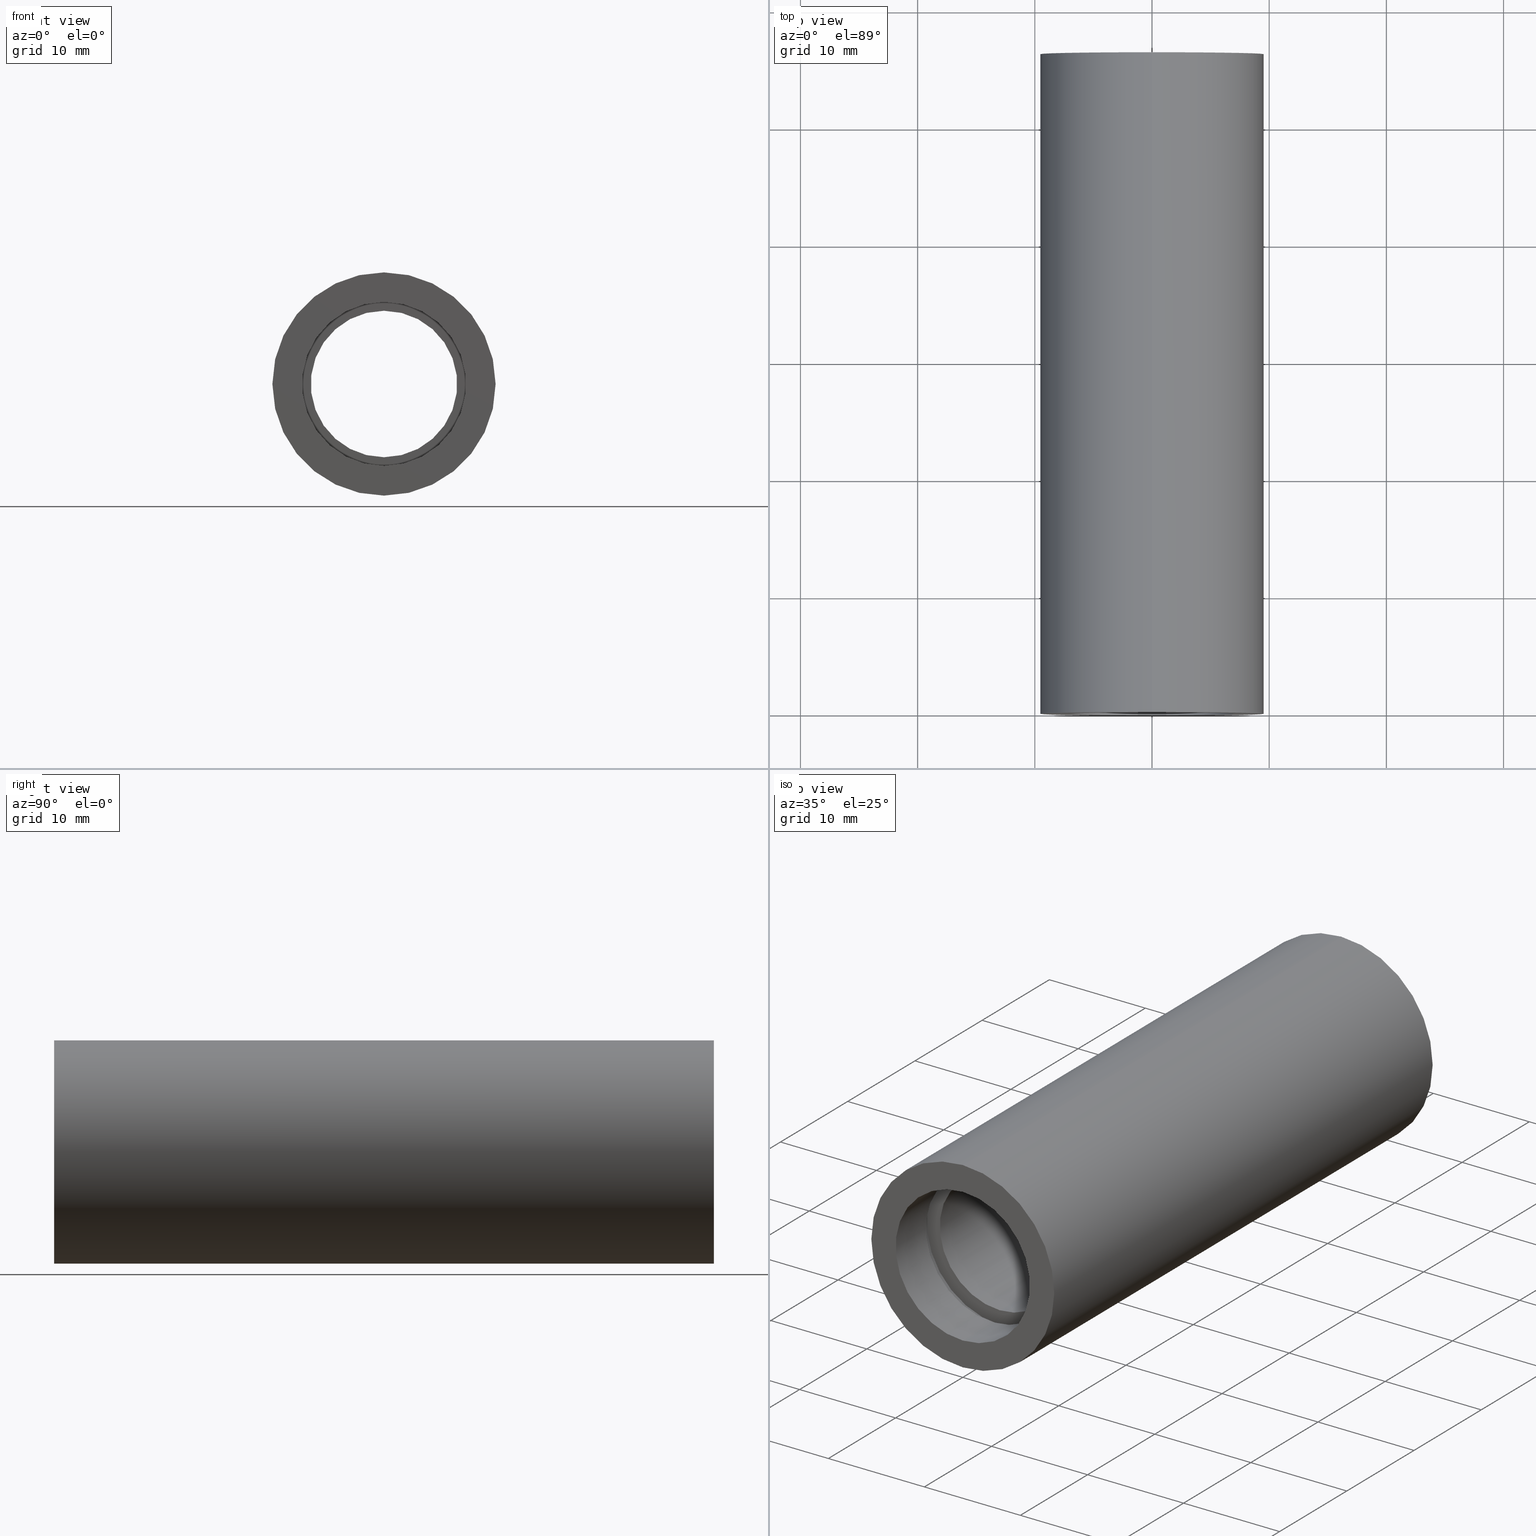
[diagram: canonical four-view strip — front | top / right | iso, engineering-drawing reading convention]
A machine part, canonical four-view strip (front | top / right | iso — engineering-drawing reading convention). The complete STEP part file that produces these views, byte-faithful:
ISO-10303-21;
HEADER;
FILE_DESCRIPTION (( 'STEP AP214' ),
    '1' );
FILE_NAME ('503084.STEP',
    '2019-09-11T02:17:24',
    ( '' ),
    ( '' ),
    'SwSTEP 2.0',
    'SolidWorks 2016',
    '' );
FILE_SCHEMA (( 'AUTOMOTIVE_DESIGN' ));
ENDSEC;

DATA;
#1 = DIRECTION ( 'NONE',  ( 0.0000000000000000000, 0.0000000000000000000, 1.000000000000000000 ) ) ;
#2 = DIRECTION ( 'NONE',  ( -0.0000000000000000000, 1.000000000000000000, -0.0000000000000000000 ) ) ;
#3 = FILL_AREA_STYLE ('',( #583 ) ) ;
#4 = VERTEX_POINT ( 'NONE', #77 ) ;
#5 = CIRCLE ( 'NONE', #9, 7.600000000000019200 ) ;
#6 = DIRECTION ( 'NONE',  ( -0.0000000000000000000, 1.000000000000000000, -0.0000000000000000000 ) ) ;
#7 = LINE ( 'NONE', #28, #565 ) ;
#8 = PLANE ( 'NONE',  #226 ) ;
#9 = AXIS2_PLACEMENT_3D ( 'NONE', #115, #387, #166 ) ;
#10 = AXIS2_PLACEMENT_3D ( 'NONE', #495, #219, #217 ) ;
#11 = ORIENTED_EDGE ( 'NONE', *, *, #424, .T. ) ;
#12 = FACE_OUTER_BOUND ( 'NONE', #78, .T. ) ;
#13 = ORIENTED_EDGE ( 'NONE', *, *, #424, .F. ) ;
#14 = AXIS2_PLACEMENT_3D ( 'NONE', #103, #332, #384 ) ;
#15 = ORIENTED_EDGE ( 'NONE', *, *, #262, .T. ) ;
#16 = LINE ( 'NONE', #252, #491 ) ;
#17 = VECTOR ( 'NONE', #531, 1000.000000000000000 ) ;
#18 = SURFACE_STYLE_USAGE ( .BOTH. , #457 ) ;
#19 = DIRECTION ( 'NONE',  ( -0.0000000000000000000, 1.000000000000000000, -0.0000000000000000000 ) ) ;
#20 = PLANE ( 'NONE',  #10 ) ;
#21 = ORIENTED_EDGE ( 'NONE', *, *, #193, .F. ) ;
#22 = AXIS2_PLACEMENT_3D ( 'NONE', #244, #202, #429 ) ;
#23 = EDGE_LOOP ( 'NONE', ( #127, #394, #72, #621 ) ) ;
#24 = CIRCLE ( 'NONE', #317, 9.525000000000019900 ) ;
#25 = ORIENTED_EDGE ( 'NONE', *, *, #170, .T. ) ;
#26 = DIRECTION ( 'NONE',  ( -0.0000000000000000000, 1.000000000000000000, -0.0000000000000000000 ) ) ;
#27 = ADVANCED_FACE ( 'NONE', ( #12, #53 ), #404, .F. ) ;
#28 = CARTESIAN_POINT ( 'NONE',  ( 1.166476076187856400E-015, 161.3761669434274500, -9.525000000000019900 ) ) ;
#29 =( LENGTH_UNIT ( ) NAMED_UNIT ( * ) SI_UNIT ( .MILLI., .METRE. ) );
#30 = ORIENTED_EDGE ( 'NONE', *, *, #44, .F. ) ;
#31 = COLOUR_RGB ( '',1.000000000000000000, 1.000000000000000000, 1.000000000000000000 ) ;
#32 = DIRECTION ( 'NONE',  ( -0.0000000000000000000, 1.000000000000000000, -0.0000000000000000000 ) ) ;
#33 = CYLINDRICAL_SURFACE ( 'NONE', #96, 7.600000000000019200 ) ;
#34 = CARTESIAN_POINT ( 'NONE',  ( 0.0000000000000000000, 161.3761669434274500, 0.0000000000000000000 ) ) ;
#35 = VERTEX_POINT ( 'NONE', #405 ) ;
#36 = DIRECTION ( 'NONE',  ( -0.0000000000000000000, 1.000000000000000000, -0.0000000000000000000 ) ) ;
#37 =( LENGTH_UNIT ( ) NAMED_UNIT ( * ) SI_UNIT ( .MILLI., .METRE. ) );
#38 = STYLED_ITEM ( 'NONE', ( #215 ), #514 ) ;
#39 = ORIENTED_EDGE ( 'NONE', *, *, #326, .F. ) ;
#40 = ADVANCED_FACE ( 'NONE', ( #545, #288 ), #20, .F. ) ;
#41 = PRESENTATION_STYLE_ASSIGNMENT (( #18 ) ) ;
#42 = VERTEX_POINT ( 'NONE', #550 ) ;
#43 = FACE_OUTER_BOUND ( 'NONE', #618, .T. ) ;
#44 = EDGE_CURVE ( 'NONE', #62, #4, #278, .T. ) ;
#45 = DIRECTION ( 'NONE',  ( 0.0000000000000000000, 0.0000000000000000000, 1.000000000000000000 ) ) ;
#46 = UNCERTAINTY_MEASURE_WITH_UNIT (LENGTH_MEASURE( 1.000000000000000100E-005 ), #37, 'distance_accuracy_value', 'NONE');
#47 = DIRECTION ( 'NONE',  ( -0.0000000000000000000, 1.000000000000000000, -0.0000000000000000000 ) ) ;
#48 = AXIS2_PLACEMENT_3D ( 'NONE', #291, #246, #108 ) ;
#49 = SHAPE_DEFINITION_REPRESENTATION ( #251, #622 ) ;
#50 = SURFACE_STYLE_USAGE ( .BOTH. , #286 ) ;
#51 = DIRECTION ( 'NONE',  ( -0.0000000000000000000, 1.000000000000000000, -0.0000000000000000000 ) ) ;
#52 = DIRECTION ( 'NONE',  ( -0.0000000000000000000, 1.000000000000000000, -0.0000000000000000000 ) ) ;
#53 = FACE_BOUND ( 'NONE', #313, .T. ) ;
#54 = CIRCLE ( 'NONE', #357, 7.600000000000019200 ) ;
#55 = SURFACE_STYLE_USAGE ( .BOTH. , #205 ) ;
#56 = DIRECTION ( 'NONE',  ( -0.0000000000000000000, 1.000000000000000000, -0.0000000000000000000 ) ) ;
#57 = EDGE_CURVE ( 'NONE', #266, #207, #100, .T. ) ;
#58 = DIRECTION ( 'NONE',  ( 0.0000000000000000000, 0.0000000000000000000, 1.000000000000000000 ) ) ;
#59 = CARTESIAN_POINT ( 'NONE',  ( 0.0000000000000000000, 56.29999999999999000, 0.0000000000000000000 ) ) ;
#60 = VERTEX_POINT ( 'NONE', #80 ) ;
#61 = CYLINDRICAL_SURFACE ( 'NONE', #284, 6.250000000000019500 ) ;
#62 = VERTEX_POINT ( 'NONE', #596 ) ;
#63 = EDGE_LOOP ( 'NONE', ( #214, #427 ) ) ;
#64 = VECTOR ( 'NONE', #185, 1000.000000000000000 ) ;
#65 = CARTESIAN_POINT ( 'NONE',  ( 0.0000000000000000000, 4.499999999999976000, 0.0000000000000000000 ) ) ;
#66 = AXIS2_PLACEMENT_3D ( 'NONE', #158, #344, #159 ) ;
#67 = EDGE_CURVE ( 'NONE', #62, #432, #388, .T. ) ;
#68 = MECHANICAL_DESIGN_GEOMETRIC_PRESENTATION_REPRESENTATION (  '', ( #258 ), #164 ) ;
#69 = ORIENTED_EDGE ( 'NONE', *, *, #254, .F. ) ;
#70 = CARTESIAN_POINT ( 'NONE',  ( 7.654042494670981300E-016, 50.79999999999998300, -6.250000000000019500 ) ) ;
#71 = ORIENTED_EDGE ( 'NONE', *, *, #311, .T. ) ;
#72 = ORIENTED_EDGE ( 'NONE', *, *, #57, .T. ) ;
#73 = PRESENTATION_STYLE_ASSIGNMENT (( #106 ) ) ;
#74 = DIRECTION ( 'NONE',  ( 0.0000000000000000000, -1.000000000000000000, 0.0000000000000000000 ) ) ;
#75 = VECTOR ( 'NONE', #508, 1000.000000000000000 ) ;
#76 = DIRECTION ( 'NONE',  ( 0.0000000000000000000, 0.0000000000000000000, 1.000000000000000000 ) ) ;
#77 = CARTESIAN_POINT ( 'NONE',  ( 7.654042494670981300E-016, 5.499999999999976900, -6.250000000000019500 ) ) ;
#78 = EDGE_LOOP ( 'NONE', ( #69, #335 ) ) ;
#79 = CIRCLE ( 'NONE', #450, 7.600000000000019200 ) ;
#80 = CARTESIAN_POINT ( 'NONE',  ( 0.0000000000000000000, 4.499999999999976000, 7.600000000000019200 ) ) ;
#81 = PRESENTATION_LAYER_ASSIGNMENT (  '', '', ( #38 ) ) ;
#82 = DIRECTION ( 'NONE',  ( 0.0000000000000000000, 0.0000000000000000000, 1.000000000000000000 ) ) ;
#83 = PRESENTATION_LAYER_ASSIGNMENT (  '', '', ( #575 ) ) ;
#84 = DIRECTION ( 'NONE',  ( -0.0000000000000000000, 1.000000000000000000, -0.0000000000000000000 ) ) ;
#85 = MECHANICAL_DESIGN_GEOMETRIC_PRESENTATION_REPRESENTATION (  '', ( #191 ), #126 ) ;
#86 = ORIENTED_EDGE ( 'NONE', *, *, #233, .F. ) ;
#87 = PRESENTATION_STYLE_ASSIGNMENT (( #55 ) ) ;
#88 = ADVANCED_FACE ( 'NONE', ( #408 ), #118, .T. ) ;
#89 = DIRECTION ( 'NONE',  ( -0.0000000000000000000, 1.000000000000000000, -0.0000000000000000000 ) ) ;
#90 = CARTESIAN_POINT ( 'NONE',  ( 0.0000000000000000000, -2.775557561562891400E-014, 9.525000000000019900 ) ) ;
#91 = DIRECTION ( 'NONE',  ( 0.0000000000000000000, 0.0000000000000000000, 1.000000000000000000 ) ) ;
#92 =( GEOMETRIC_REPRESENTATION_CONTEXT ( 3 ) GLOBAL_UNCERTAINTY_ASSIGNED_CONTEXT ( ( #454 ) ) GLOBAL_UNIT_ASSIGNED_CONTEXT ( ( #359, #125, #505 ) ) REPRESENTATION_CONTEXT ( 'NONE', 'WORKASPACE' ) );
#93 = CARTESIAN_POINT ( 'NONE',  ( 9.307315673519907200E-016, 161.3761669434274500, -7.600000000000019200 ) ) ;
#94 = FACE_OUTER_BOUND ( 'NONE', #99, .T. ) ;
#95 = DIRECTION ( 'NONE',  ( -0.0000000000000000000, 1.000000000000000000, -0.0000000000000000000 ) ) ;
#96 = AXIS2_PLACEMENT_3D ( 'NONE', #34, #135, #91 ) ;
#97 = CARTESIAN_POINT ( 'NONE',  ( 9.307315673519907200E-016, 51.79999999999998300, -7.600000000000019200 ) ) ;
#98 = AXIS2_PLACEMENT_3D ( 'NONE', #453, #608, #417 ) ;
#99 = EDGE_LOOP ( 'NONE', ( #498, #490, #265, #21 ) ) ;
#100 = LINE ( 'NONE', #362, #299 ) ;
#101 = CYLINDRICAL_SURFACE ( 'NONE', #48, 6.250000000000019500 ) ;
#102 =( NAMED_UNIT ( * ) SI_UNIT ( $, .STERADIAN. ) SOLID_ANGLE_UNIT ( ) );
#103 = CARTESIAN_POINT ( 'NONE',  ( 0.0000000000000000000, 51.79999999999998300, 0.0000000000000000000 ) ) ;
#104 =( NAMED_UNIT ( * ) SI_UNIT ( $, .STERADIAN. ) SOLID_ANGLE_UNIT ( ) );
#105 = DIRECTION ( 'NONE',  ( 0.0000000000000000000, 0.0000000000000000000, 1.000000000000000000 ) ) ;
#106 = SURFACE_STYLE_USAGE ( .BOTH. , #623 ) ;
#107 = CARTESIAN_POINT ( 'NONE',  ( 0.0000000000000000000, 51.79999999999998300, 0.0000000000000000000 ) ) ;
#108 = DIRECTION ( 'NONE',  ( 0.0000000000000000000, 0.0000000000000000000, 1.000000000000000000 ) ) ;
#109 = CYLINDRICAL_SURFACE ( 'NONE', #303, 7.200000000000011700 ) ;
#110 = EDGE_CURVE ( 'NONE', #60, #395, #537, .T. ) ;
#111 = LINE ( 'NONE', #370, #64 ) ;
#112 = DIRECTION ( 'NONE',  ( 0.0000000000000000000, 0.0000000000000000000, 1.000000000000000000 ) ) ;
#113 = AXIS2_PLACEMENT_3D ( 'NONE', #275, #530, #112 ) ;
#114 = MECHANICAL_DESIGN_GEOMETRIC_PRESENTATION_REPRESENTATION (  '', ( #575 ), #92 ) ;
#115 = CARTESIAN_POINT ( 'NONE',  ( 0.0000000000000000000, 50.79999999999998300, 0.0000000000000000000 ) ) ;
#116 = VERTEX_POINT ( 'NONE', #177 ) ;
#117 = DIRECTION ( 'NONE',  ( 0.0000000000000000000, 0.0000000000000000000, 1.000000000000000000 ) ) ;
#118 = CYLINDRICAL_SURFACE ( 'NONE', #535, 9.525000000000019900 ) ;
#119 = UNCERTAINTY_MEASURE_WITH_UNIT (LENGTH_MEASURE( 1.000000000000000100E-005 ), #245, 'distance_accuracy_value', 'NONE');
#120 = PRODUCT ( '503084', '503084', '', ( #152 ) ) ;
#121 = PRESENTATION_STYLE_ASSIGNMENT (( #604 ) ) ;
#122 = FACE_OUTER_BOUND ( 'NONE', #230, .T. ) ;
#123 = DIRECTION ( 'NONE',  ( -0.0000000000000000000, 1.000000000000000000, -0.0000000000000000000 ) ) ;
#124 = PRESENTATION_LAYER_ASSIGNMENT (  '', '', ( #267 ) ) ;
#125 =( NAMED_UNIT ( * ) PLANE_ANGLE_UNIT ( ) SI_UNIT ( $, .RADIAN. ) );
#126 =( GEOMETRIC_REPRESENTATION_CONTEXT ( 3 ) GLOBAL_UNCERTAINTY_ASSIGNED_CONTEXT ( ( #46 ) ) GLOBAL_UNIT_ASSIGNED_CONTEXT ( ( #37, #435, #619 ) ) REPRESENTATION_CONTEXT ( 'NONE', 'WORKASPACE' ) );
#127 = ORIENTED_EDGE ( 'NONE', *, *, #295, .F. ) ;
#128 = PRODUCT_RELATED_PRODUCT_CATEGORY ( 'part', '', ( #120 ) ) ;
#129 = ORIENTED_EDGE ( 'NONE', *, *, #311, .F. ) ;
#130 = CYLINDRICAL_SURFACE ( 'NONE', #574, 7.000000000000020400 ) ;
#131 = DIRECTION ( 'NONE',  ( 0.0000000000000000000, 0.0000000000000000000, 1.000000000000000000 ) ) ;
#132 =( GEOMETRIC_REPRESENTATION_CONTEXT ( 3 ) GLOBAL_UNCERTAINTY_ASSIGNED_CONTEXT ( ( #119 ) ) GLOBAL_UNIT_ASSIGNED_CONTEXT ( ( #245, #249, #104 ) ) REPRESENTATION_CONTEXT ( 'NONE', 'WORKASPACE' ) );
#133 = FILL_AREA_STYLE_COLOUR ( '', #548 ) ;
#134 = ADVANCED_FACE ( 'NONE', ( #528 ), #109, .F. ) ;
#135 = DIRECTION ( 'NONE',  ( -0.0000000000000000000, 1.000000000000000000, -0.0000000000000000000 ) ) ;
#136 = CARTESIAN_POINT ( 'NONE',  ( 0.0000000000000000000, 50.79999999999998300, 0.0000000000000000000 ) ) ;
#137 = VERTEX_POINT ( 'NONE', #263 ) ;
#138 = CIRCLE ( 'NONE', #471, 7.200000000000012600 ) ;
#139 = CIRCLE ( 'NONE', #513, 7.000000000000020400 ) ;
#140 = FILL_AREA_STYLE_COLOUR ( '', #592 ) ;
#141 = EDGE_CURVE ( 'NONE', #407, #292, #320, .T. ) ;
#142 = CARTESIAN_POINT ( 'NONE',  ( 0.0000000000000000000, -2.775557561562891400E-014, 0.0000000000000000000 ) ) ;
#143 = DIRECTION ( 'NONE',  ( -0.0000000000000000000, 1.000000000000000000, -0.0000000000000000000 ) ) ;
#144 = AXIS2_PLACEMENT_3D ( 'NONE', #290, #210, #302 ) ;
#145 = ORIENTED_EDGE ( 'NONE', *, *, #250, .T. ) ;
#146 = AXIS2_PLACEMENT_3D ( 'NONE', #452, #458, #82 ) ;
#147 = ADVANCED_FACE ( 'NONE', ( #461 ), #466, .F. ) ;
#148 = CARTESIAN_POINT ( 'NONE',  ( 0.0000000000000000000, 161.3761669434274500, 0.0000000000000000000 ) ) ;
#149 = ORIENTED_EDGE ( 'NONE', *, *, #57, .F. ) ;
#150 = CYLINDRICAL_SURFACE ( 'NONE', #144, 9.525000000000019900 ) ;
#151 = CARTESIAN_POINT ( 'NONE',  ( 0.0000000000000000000, 0.0000000000000000000, 0.0000000000000000000 ) ) ;
#152 = PRODUCT_CONTEXT ( 'NONE', #420, 'mechanical' ) ;
#153 = CARTESIAN_POINT ( 'NONE',  ( 7.000000000000020400, 4.499999999999983100, 0.0000000000000000000 ) ) ;
#154 = ORIENTED_EDGE ( 'NONE', *, *, #67, .T. ) ;
#155 = SURFACE_STYLE_FILL_AREA ( #3 ) ;
#156 = DIRECTION ( 'NONE',  ( 0.0000000000000000000, 0.0000000000000000000, 1.000000000000000000 ) ) ;
#157 = LINE ( 'NONE', #590, #17 ) ;
#158 = CARTESIAN_POINT ( 'NONE',  ( 0.0000000000000000000, 5.499999999999976900, 0.0000000000000000000 ) ) ;
#159 = DIRECTION ( 'NONE',  ( 0.0000000000000000000, 0.0000000000000000000, 1.000000000000000000 ) ) ;
#160 = EDGE_CURVE ( 'NONE', #620, #432, #479, .T. ) ;
#161 = ORIENTED_EDGE ( 'NONE', *, *, #233, .T. ) ;
#162 = AXIS2_PLACEMENT_3D ( 'NONE', #512, #234, #269 ) ;
#163 = ORIENTED_EDGE ( 'NONE', *, *, #364, .F. ) ;
#164 =( GEOMETRIC_REPRESENTATION_CONTEXT ( 3 ) GLOBAL_UNCERTAINTY_ASSIGNED_CONTEXT ( ( #506 ) ) GLOBAL_UNIT_ASSIGNED_CONTEXT ( ( #29, #369, #522 ) ) REPRESENTATION_CONTEXT ( 'NONE', 'WORKASPACE' ) );
#165 = AXIS2_PLACEMENT_3D ( 'NONE', #356, #360, #270 ) ;
#166 = DIRECTION ( 'NONE',  ( 0.0000000000000000000, 0.0000000000000000000, 1.000000000000000000 ) ) ;
#167 = ORIENTED_EDGE ( 'NONE', *, *, #393, .T. ) ;
#168 = LINE ( 'NONE', #273, #218 ) ;
#169 = MANIFOLD_SOLID_BREP ( '��ת1', #300 ) ;
#170 = EDGE_CURVE ( 'NONE', #200, #116, #168, .T. ) ;
#171 = DIRECTION ( 'NONE',  ( -0.0000000000000000000, 1.000000000000000000, -0.0000000000000000000 ) ) ;
#172 = ORIENTED_EDGE ( 'NONE', *, *, #496, .F. ) ;
#173 = COLOUR_RGB ( '',1.000000000000000000, 1.000000000000000000, 1.000000000000000000 ) ;
#174 = ORIENTED_EDGE ( 'NONE', *, *, #393, .F. ) ;
#175 = MECHANICAL_DESIGN_GEOMETRIC_PRESENTATION_REPRESENTATION (  '', ( #38 ), #209 ) ;
#176 = AXIS2_PLACEMENT_3D ( 'NONE', #307, #354, #76 ) ;
#177 = CARTESIAN_POINT ( 'NONE',  ( 0.0000000000000000000, 4.499999999999976000, 7.000000000000020400 ) ) ;
#178 = CARTESIAN_POINT ( 'NONE',  ( 8.572527594031496900E-016, -2.775557561562891400E-014, -7.000000000000020400 ) ) ;
#179 = SURFACE_SIDE_STYLE ('',( #285 ) ) ;
#180 = ORIENTED_EDGE ( 'NONE', *, *, #331, .F. ) ;
#181 = EDGE_LOOP ( 'NONE', ( #276, #167, #425, #489 ) ) ;
#182 = EDGE_LOOP ( 'NONE', ( #442, #337, #129, #149 ) ) ;
#183 = FACE_OUTER_BOUND ( 'NONE', #601, .T. ) ;
#184 = DIRECTION ( 'NONE',  ( 0.0000000000000000000, 0.0000000000000000000, 1.000000000000000000 ) ) ;
#185 = DIRECTION ( 'NONE',  ( -0.0000000000000000000, 1.000000000000000000, -0.0000000000000000000 ) ) ;
#186 = MECHANICAL_DESIGN_GEOMETRIC_PRESENTATION_REPRESENTATION (  '', ( #267 ), #484 ) ;
#187 = EDGE_LOOP ( 'NONE', ( #13, #163, #25, #551 ) ) ;
#188 = ORIENTED_EDGE ( 'NONE', *, *, #349, .T. ) ;
#189 = LINE ( 'NONE', #235, #519 ) ;
#190 = CARTESIAN_POINT ( 'NONE',  ( 0.0000000000000000000, 56.29999999999999000, 0.0000000000000000000 ) ) ;
#191 = STYLED_ITEM ( 'NONE', ( #546 ), #323 ) ;
#192 = ORIENTED_EDGE ( 'NONE', *, *, #446, .F. ) ;
#193 = EDGE_CURVE ( 'NONE', #60, #239, #419, .T. ) ;
#194 = ADVANCED_FACE ( 'NONE', ( #122 ), #33, .F. ) ;
#195 = DIRECTION ( 'NONE',  ( 0.0000000000000000000, 0.0000000000000000000, 1.000000000000000000 ) ) ;
#196 = DIRECTION ( 'NONE',  ( 0.0000000000000000000, 0.0000000000000000000, 1.000000000000000000 ) ) ;
#197 = FILL_AREA_STYLE ('',( #334 ) ) ;
#198 = ORIENTED_EDGE ( 'NONE', *, *, #160, .F. ) ;
#199 = DIRECTION ( 'NONE',  ( -0.0000000000000000000, 1.000000000000000000, -0.0000000000000000000 ) ) ;
#200 = VERTEX_POINT ( 'NONE', #228 ) ;
#201 = CIRCLE ( 'NONE', #162, 7.600000000000019200 ) ;
#202 = DIRECTION ( 'NONE',  ( -0.0000000000000000000, 1.000000000000000000, -0.0000000000000000000 ) ) ;
#203 =( NAMED_UNIT ( * ) SI_UNIT ( $, .STERADIAN. ) SOLID_ANGLE_UNIT ( ) );
#204 = CARTESIAN_POINT ( 'NONE',  ( 0.0000000000000000000, 50.79999999999998300, 7.600000000000019200 ) ) ;
#205 = SURFACE_SIDE_STYLE ('',( #594 ) ) ;
#206 = EDGE_CURVE ( 'NONE', #116, #379, #139, .T. ) ;
#207 = VERTEX_POINT ( 'NONE', #421 ) ;
#208 = FACE_OUTER_BOUND ( 'NONE', #306, .T. ) ;
#209 =( GEOMETRIC_REPRESENTATION_CONTEXT ( 3 ) GLOBAL_UNCERTAINTY_ASSIGNED_CONTEXT ( ( #447 ) ) GLOBAL_UNIT_ASSIGNED_CONTEXT ( ( #440, #341, #203 ) ) REPRESENTATION_CONTEXT ( 'NONE', 'WORKASPACE' ) );
#210 = DIRECTION ( 'NONE',  ( -0.0000000000000000000, 1.000000000000000000, -0.0000000000000000000 ) ) ;
#211 = AXIS2_PLACEMENT_3D ( 'NONE', #497, #268, #403 ) ;
#212 =( NAMED_UNIT ( * ) SI_UNIT ( $, .STERADIAN. ) SOLID_ANGLE_UNIT ( ) );
#213 = VERTEX_POINT ( 'NONE', #178 ) ;
#214 = ORIENTED_EDGE ( 'NONE', *, *, #206, .F. ) ;
#215 = PRESENTATION_STYLE_ASSIGNMENT (( #50 ) ) ;
#216 = CIRCLE ( 'NONE', #66, 7.600000000000019200 ) ;
#217 = DIRECTION ( 'NONE',  ( 0.0000000000000000000, -0.0000000000000000000, -1.000000000000000000 ) ) ;
#218 = VECTOR ( 'NONE', #507, 1000.000000000000000 ) ;
#219 = DIRECTION ( 'NONE',  ( 0.0000000000000000000, -1.000000000000000000, 0.0000000000000000000 ) ) ;
#220 = EDGE_CURVE ( 'NONE', #395, #42, #389, .T. ) ;
#221 = AXIS2_PLACEMENT_3D ( 'NONE', #190, #2, #45 ) ;
#222 = EDGE_CURVE ( 'NONE', #4, #620, #610, .T. ) ;
#223 = UNCERTAINTY_MEASURE_WITH_UNIT (LENGTH_MEASURE( 1.000000000000000100E-005 ), #463, 'distance_accuracy_value', 'NONE');
#224 = ORIENTED_EDGE ( 'NONE', *, *, #326, .T. ) ;
#225 = ORIENTED_EDGE ( 'NONE', *, *, #485, .F. ) ;
#226 = AXIS2_PLACEMENT_3D ( 'NONE', #437, #475, #156 ) ;
#227 = SURFACE_STYLE_USAGE ( .BOTH. , #179 ) ;
#228 = CARTESIAN_POINT ( 'NONE',  ( 0.0000000000000000000, -2.775557561562891400E-014, 7.000000000000020400 ) ) ;
#229 = FILL_AREA_STYLE ('',( #140 ) ) ;
#230 = EDGE_LOOP ( 'NONE', ( #86, #225, #188, #260 ) ) ;
#231 = SURFACE_SIDE_STYLE ('',( #607 ) ) ;
#232 = COLOUR_RGB ( '',1.000000000000000000, 1.000000000000000000, 1.000000000000000000 ) ;
#233 = EDGE_CURVE ( 'NONE', #137, #351, #481, .T. ) ;
#234 = DIRECTION ( 'NONE',  ( -0.0000000000000000000, 1.000000000000000000, -0.0000000000000000000 ) ) ;
#235 = CARTESIAN_POINT ( 'NONE',  ( 0.0000000000000000000, 161.3761669434274500, 7.600000000000019200 ) ) ;
#236 = STYLED_ITEM ( 'NONE', ( #87 ), #520 ) ;
#237 = AXIS2_PLACEMENT_3D ( 'NONE', #136, #32, #184 ) ;
#238 = ORIENTED_EDGE ( 'NONE', *, *, #160, .T. ) ;
#239 = VERTEX_POINT ( 'NONE', #413 ) ;
#240 = DIRECTION ( 'NONE',  ( -0.0000000000000000000, 1.000000000000000000, -0.0000000000000000000 ) ) ;
#241 = APPLICATION_PROTOCOL_DEFINITION ( 'draft international standard', 'automotive_design', 1998, #612 ) ;
#242 =( LENGTH_UNIT ( ) NAMED_UNIT ( * ) SI_UNIT ( .MILLI., .METRE. ) );
#243 = CARTESIAN_POINT ( 'NONE',  ( 1.166476076187856400E-015, 56.29999999999999000, -9.525000000000019900 ) ) ;
#244 = CARTESIAN_POINT ( 'NONE',  ( 0.0000000000000000000, 4.499999999999976000, 0.0000000000000000000 ) ) ;
#245 =( LENGTH_UNIT ( ) NAMED_UNIT ( * ) SI_UNIT ( .MILLI., .METRE. ) );
#246 = DIRECTION ( 'NONE',  ( -0.0000000000000000000, 1.000000000000000000, -0.0000000000000000000 ) ) ;
#247 = ORIENTED_EDGE ( 'NONE', *, *, #589, .T. ) ;
#248 = COLOUR_RGB ( '',1.000000000000000000, 1.000000000000000000, 1.000000000000000000 ) ;
#249 =( NAMED_UNIT ( * ) PLANE_ANGLE_UNIT ( ) SI_UNIT ( $, .RADIAN. ) );
#250 = EDGE_CURVE ( 'NONE', #292, #35, #111, .T. ) ;
#251 = PRODUCT_DEFINITION_SHAPE ( 'NONE', 'NONE',  #559 ) ;
#252 = CARTESIAN_POINT ( 'NONE',  ( 8.572527594031496900E-016, 161.3761669434274500, -7.000000000000020400 ) ) ;
#253 = AXIS2_PLACEMENT_3D ( 'NONE', #327, #51, #527 ) ;
#254 = EDGE_CURVE ( 'NONE', #377, #351, #201, .T. ) ;
#255 = EDGE_LOOP ( 'NONE', ( #555, #15 ) ) ;
#256 = ORIENTED_EDGE ( 'NONE', *, *, #222, .F. ) ;
#257 = COLOUR_RGB ( '',1.000000000000000000, 1.000000000000000000, 1.000000000000000000 ) ;
#258 = STYLED_ITEM ( 'NONE', ( #259 ), #622 ) ;
#259 = PRESENTATION_STYLE_ASSIGNMENT (( #227 ) ) ;
#260 = ORIENTED_EDGE ( 'NONE', *, *, #254, .T. ) ;
#261 = FACE_OUTER_BOUND ( 'NONE', #416, .T. ) ;
#262 = EDGE_CURVE ( 'NONE', #213, #200, #355, .T. ) ;
#263 = CARTESIAN_POINT ( 'NONE',  ( 9.307315673519907200E-016, 50.79999999999998300, -7.600000000000019200 ) ) ;
#264 = PRESENTATION_LAYER_ASSIGNMENT (  '', '', ( #236 ) ) ;
#265 = ORIENTED_EDGE ( 'NONE', *, *, #274, .T. ) ;
#266 = VERTEX_POINT ( 'NONE', #90 ) ;
#267 = STYLED_ITEM ( 'NONE', ( #121 ), #169 ) ;
#268 = DIRECTION ( 'NONE',  ( -0.0000000000000000000, 1.000000000000000000, -0.0000000000000000000 ) ) ;
#269 = DIRECTION ( 'NONE',  ( 0.0000000000000000000, 0.0000000000000000000, 1.000000000000000000 ) ) ;
#270 = DIRECTION ( 'NONE',  ( 0.0000000000000000000, 0.0000000000000000000, 1.000000000000000000 ) ) ;
#271 = FACE_OUTER_BOUND ( 'NONE', #187, .T. ) ;
#272 = CARTESIAN_POINT ( 'NONE',  ( 0.0000000000000000000, 4.499999999999976000, 0.0000000000000000000 ) ) ;
#273 = CARTESIAN_POINT ( 'NONE',  ( 0.0000000000000000000, 161.3761669434274500, 7.000000000000020400 ) ) ;
#274 = EDGE_CURVE ( 'NONE', #42, #239, #345, .T. ) ;
#275 = CARTESIAN_POINT ( 'NONE',  ( 0.0000000000000000000, -2.775557561562891400E-014, 0.0000000000000000000 ) ) ;
#276 = ORIENTED_EDGE ( 'NONE', *, *, #141, .F. ) ;
#277 = DIRECTION ( 'NONE',  ( -0.0000000000000000000, 1.000000000000000000, -0.0000000000000000000 ) ) ;
#278 = CIRCLE ( 'NONE', #468, 6.250000000000019500 ) ;
#279 = EDGE_LOOP ( 'NONE', ( #71, #247 ) ) ;
#280 = CIRCLE ( 'NONE', #22, 7.000000000000020400 ) ;
#281 = AXIS2_PLACEMENT_3D ( 'NONE', #148, #277, #477 ) ;
#282 = FILL_AREA_STYLE_COLOUR ( '', #248 ) ;
#283 = DIRECTION ( 'NONE',  ( 0.0000000000000000000, 0.0000000000000000000, 1.000000000000000000 ) ) ;
#284 = AXIS2_PLACEMENT_3D ( 'NONE', #386, #434, #58 ) ;
#285 = SURFACE_STYLE_FILL_AREA ( #459 ) ;
#286 = SURFACE_SIDE_STYLE ('',( #155 ) ) ;
#287 = SURFACE_STYLE_USAGE ( .BOTH. , #336 ) ;
#288 = FACE_OUTER_BOUND ( 'NONE', #279, .T. ) ;
#289 = SURFACE_STYLE_FILL_AREA ( #444 ) ;
#290 = CARTESIAN_POINT ( 'NONE',  ( 0.0000000000000000000, 161.3761669434274500, 0.0000000000000000000 ) ) ;
#291 = CARTESIAN_POINT ( 'NONE',  ( 0.0000000000000000000, 161.3761669434274500, 0.0000000000000000000 ) ) ;
#292 = VERTEX_POINT ( 'NONE', #569 ) ;
#293 = FACE_OUTER_BOUND ( 'NONE', #426, .T. ) ;
#294 = DIRECTION ( 'NONE',  ( 0.0000000000000000000, 0.0000000000000000000, 1.000000000000000000 ) ) ;
#295 = EDGE_CURVE ( 'NONE', #509, #518, #7, .T. ) ;
#296 = DIRECTION ( 'NONE',  ( -0.0000000000000000000, 1.000000000000000000, -0.0000000000000000000 ) ) ;
#297 = EDGE_LOOP ( 'NONE', ( #448, #400 ) ) ;
#298 = CIRCLE ( 'NONE', #165, 6.250000000000019500 ) ;
#299 = VECTOR ( 'NONE', #123, 1000.000000000000000 ) ;
#300 = CLOSED_SHELL ( 'NONE', ( #323, #318, #414, #376, #134, #88, #572, #469, #40, #514, #27, #194, #615, #568, #330, #147, #606, #520 ) ) ;
#301 =( GEOMETRIC_REPRESENTATION_CONTEXT ( 3 ) GLOBAL_UNCERTAINTY_ASSIGNED_CONTEXT ( ( #560 ) ) GLOBAL_UNIT_ASSIGNED_CONTEXT ( ( #242, #343, #102 ) ) REPRESENTATION_CONTEXT ( 'NONE', 'WORKASPACE' ) );
#302 = DIRECTION ( 'NONE',  ( 0.0000000000000000000, 0.0000000000000000000, 1.000000000000000000 ) ) ;
#303 = AXIS2_PLACEMENT_3D ( 'NONE', #308, #19, #315 ) ;
#304 = ORIENTED_EDGE ( 'NONE', *, *, #170, .F. ) ;
#305 = ORIENTED_EDGE ( 'NONE', *, *, #614, .T. ) ;
#306 = EDGE_LOOP ( 'NONE', ( #591, #381 ) ) ;
#307 = CARTESIAN_POINT ( 'NONE',  ( 0.0000000000000000000, 51.79999999999998300, 0.0000000000000000000 ) ) ;
#308 = CARTESIAN_POINT ( 'NONE',  ( 0.0000000000000000000, 161.3761669434274500, 0.0000000000000000000 ) ) ;
#309 = DIRECTION ( 'NONE',  ( 0.0000000000000000000, 0.0000000000000000000, 1.000000000000000000 ) ) ;
#310 = VERTEX_POINT ( 'NONE', #465 ) ;
#311 = EDGE_CURVE ( 'NONE', #207, #518, #373, .T. ) ;
#312 = FACE_BOUND ( 'NONE', #449, .T. ) ;
#313 = EDGE_LOOP ( 'NONE', ( #578, #488 ) ) ;
#314 = CYLINDRICAL_SURFACE ( 'NONE', #253, 7.000000000000020400 ) ;
#315 = DIRECTION ( 'NONE',  ( 0.0000000000000000000, 0.0000000000000000000, 1.000000000000000000 ) ) ;
#316 = AXIS2_PLACEMENT_3D ( 'NONE', #521, #143, #105 ) ;
#317 = AXIS2_PLACEMENT_3D ( 'NONE', #339, #6, #438 ) ;
#318 = ADVANCED_FACE ( 'NONE', ( #94 ), #529, .F. ) ;
#319 = EDGE_LOOP ( 'NONE', ( #603, #409, #556, #396 ) ) ;
#320 = CIRCLE ( 'NONE', #176, 7.200000000000011700 ) ;
#321 = DIRECTION ( 'NONE',  ( 0.0000000000000000000, 0.0000000000000000000, 1.000000000000000000 ) ) ;
#322 = CIRCLE ( 'NONE', #316, 7.000000000000020400 ) ;
#323 = ADVANCED_FACE ( 'NONE', ( #43 ), #314, .F. ) ;
#324 = CARTESIAN_POINT ( 'NONE',  ( 9.307315673519907200E-016, 161.3761669434274500, -7.600000000000019200 ) ) ;
#325 =( LENGTH_UNIT ( ) NAMED_UNIT ( * ) SI_UNIT ( .MILLI., .METRE. ) );
#326 = EDGE_CURVE ( 'NONE', #137, #492, #443, .T. ) ;
#327 = CARTESIAN_POINT ( 'NONE',  ( 0.0000000000000000000, 161.3761669434274500, 0.0000000000000000000 ) ) ;
#328 = PRODUCT_DEFINITION_FORMATION_WITH_SPECIFIED_SOURCE ( '�κ�', '', #120, .NOT_KNOWN. ) ;
#329 = AXIS2_PLACEMENT_3D ( 'NONE', #580, #240, #390 ) ;
#330 = ADVANCED_FACE ( 'NONE', ( #539, #573 ), #340, .F. ) ;
#331 = EDGE_CURVE ( 'NONE', #509, #266, #451, .T. ) ;
#332 = DIRECTION ( 'NONE',  ( -0.0000000000000000000, 1.000000000000000000, -0.0000000000000000000 ) ) ;
#333 = UNCERTAINTY_MEASURE_WITH_UNIT (LENGTH_MEASURE( 1.000000000000000100E-005 ), #586, 'distance_accuracy_value', 'NONE');
#334 = FILL_AREA_STYLE_COLOUR ( '', #257 ) ;
#335 = ORIENTED_EDGE ( 'NONE', *, *, #599, .F. ) ;
#336 = SURFACE_SIDE_STYLE ('',( #428 ) ) ;
#337 = ORIENTED_EDGE ( 'NONE', *, *, #295, .T. ) ;
#338 = SURFACE_STYLE_FILL_AREA ( #197 ) ;
#339 = CARTESIAN_POINT ( 'NONE',  ( 0.0000000000000000000, 56.29999999999999000, 0.0000000000000000000 ) ) ;
#340 = PLANE ( 'NONE',  #445 ) ;
#341 =( NAMED_UNIT ( * ) PLANE_ANGLE_UNIT ( ) SI_UNIT ( $, .RADIAN. ) );
#342 = CARTESIAN_POINT ( 'NONE',  ( 9.307315673519907200E-016, 4.499999999999976000, -7.600000000000019200 ) ) ;
#343 =( NAMED_UNIT ( * ) PLANE_ANGLE_UNIT ( ) SI_UNIT ( $, .RADIAN. ) );
#344 = DIRECTION ( 'NONE',  ( -0.0000000000000000000, 1.000000000000000000, -0.0000000000000000000 ) ) ;
#345 = CIRCLE ( 'NONE', #542, 7.600000000000019200 ) ;
#346 = SURFACE_STYLE_USAGE ( .BOTH. , #478 ) ;
#347 = EDGE_CURVE ( 'NONE', #292, #407, #511, .T. ) ;
#348 = STYLED_ITEM ( 'NONE', ( #418 ), #414 ) ;
#349 = EDGE_CURVE ( 'NONE', #492, #377, #189, .T. ) ;
#350 = EDGE_LOOP ( 'NONE', ( #570, #516 ) ) ;
#351 = VERTEX_POINT ( 'NONE', #97 ) ;
#352 = FACE_OUTER_BOUND ( 'NONE', #472, .T. ) ;
#353 = AXIS2_PLACEMENT_3D ( 'NONE', #153, #74, #543 ) ;
#354 = DIRECTION ( 'NONE',  ( -0.0000000000000000000, 1.000000000000000000, -0.0000000000000000000 ) ) ;
#355 = CIRCLE ( 'NONE', #378, 7.000000000000020400 ) ;
#356 = CARTESIAN_POINT ( 'NONE',  ( 0.0000000000000000000, 50.79999999999998300, 0.0000000000000000000 ) ) ;
#357 = AXIS2_PLACEMENT_3D ( 'NONE', #65, #296, #399 ) ;
#358 = EDGE_CURVE ( 'NONE', #379, #116, #280, .T. ) ;
#359 =( LENGTH_UNIT ( ) NAMED_UNIT ( * ) SI_UNIT ( .MILLI., .METRE. ) );
#360 = DIRECTION ( 'NONE',  ( -0.0000000000000000000, 1.000000000000000000, -0.0000000000000000000 ) ) ;
#361 = MECHANICAL_DESIGN_GEOMETRIC_PRESENTATION_REPRESENTATION (  '', ( #236 ), #301 ) ;
#362 = CARTESIAN_POINT ( 'NONE',  ( 0.0000000000000000000, 161.3761669434274500, 9.525000000000019900 ) ) ;
#363 = ORIENTED_EDGE ( 'NONE', *, *, #485, .T. ) ;
#364 = EDGE_CURVE ( 'NONE', #200, #213, #322, .T. ) ;
#365 = ORIENTED_EDGE ( 'NONE', *, *, #262, .F. ) ;
#366 = APPLICATION_PROTOCOL_DEFINITION ( 'draft international standard', 'automotive_design', 1998, #420 ) ;
#367 = CIRCLE ( 'NONE', #392, 6.250000000000019500 ) ;
#368 = CARTESIAN_POINT ( 'NONE',  ( 0.0000000000000000000, 5.499999999999976900, 0.0000000000000000000 ) ) ;
#369 =( NAMED_UNIT ( * ) PLANE_ANGLE_UNIT ( ) SI_UNIT ( $, .RADIAN. ) );
#370 = CARTESIAN_POINT ( 'NONE',  ( 0.0000000000000000000, 161.3761669434274500, 7.200000000000011700 ) ) ;
#371 = ORIENTED_EDGE ( 'NONE', *, *, #456, .T. ) ;
#372 = CARTESIAN_POINT ( 'NONE',  ( 0.0000000000000000000, 161.3761669434274500, 7.600000000000019200 ) ) ;
#373 = CIRCLE ( 'NONE', #221, 9.525000000000019900 ) ;
#374 = AXIS2_PLACEMENT_3D ( 'NONE', #494, #600, #411 ) ;
#375 = CARTESIAN_POINT ( 'NONE',  ( 0.0000000000000000000, -2.775557561562891400E-014, 0.0000000000000000000 ) ) ;
#376 = ADVANCED_FACE ( 'NONE', ( #183 ), #410, .F. ) ;
#377 = VERTEX_POINT ( 'NONE', #577 ) ;
#378 = AXIS2_PLACEMENT_3D ( 'NONE', #142, #566, #321 ) ;
#379 = VERTEX_POINT ( 'NONE', #439 ) ;
#380 = EDGE_CURVE ( 'NONE', #239, #42, #216, .T. ) ;
#381 = ORIENTED_EDGE ( 'NONE', *, *, #406, .T. ) ;
#382 = CIRCLE ( 'NONE', #329, 7.200000000000012600 ) ;
#383 = CARTESIAN_POINT ( 'NONE',  ( 6.250000000000019500, 5.499999999999983100, 0.0000000000000000000 ) ) ;
#384 = DIRECTION ( 'NONE',  ( 0.0000000000000000000, 0.0000000000000000000, 1.000000000000000000 ) ) ;
#385 = MECHANICAL_DESIGN_GEOMETRIC_PRESENTATION_REPRESENTATION (  '', ( #398 ), #132 ) ;
#386 = CARTESIAN_POINT ( 'NONE',  ( 0.0000000000000000000, 161.3761669434274500, 0.0000000000000000000 ) ) ;
#387 = DIRECTION ( 'NONE',  ( -0.0000000000000000000, 1.000000000000000000, -0.0000000000000000000 ) ) ;
#388 = LINE ( 'NONE', #547, #500 ) ;
#389 = LINE ( 'NONE', #93, #595 ) ;
#390 = DIRECTION ( 'NONE',  ( 0.0000000000000000000, 0.0000000000000000000, 1.000000000000000000 ) ) ;
#391 = DIRECTION ( 'NONE',  ( -0.0000000000000000000, 1.000000000000000000, -0.0000000000000000000 ) ) ;
#392 = AXIS2_PLACEMENT_3D ( 'NONE', #540, #585, #294 ) ;
#393 = EDGE_CURVE ( 'NONE', #407, #310, #157, .T. ) ;
#394 = ORIENTED_EDGE ( 'NONE', *, *, #331, .T. ) ;
#395 = VERTEX_POINT ( 'NONE', #342 ) ;
#396 = ORIENTED_EDGE ( 'NONE', *, *, #380, .T. ) ;
#397 = VECTOR ( 'NONE', #36, 1000.000000000000000 ) ;
#398 = STYLED_ITEM ( 'NONE', ( #73 ), #568 ) ;
#399 = DIRECTION ( 'NONE',  ( 0.0000000000000000000, 0.0000000000000000000, 1.000000000000000000 ) ) ;
#400 = ORIENTED_EDGE ( 'NONE', *, *, #554, .F. ) ;
#401 = SURFACE_STYLE_FILL_AREA ( #598 ) ;
#402 = CIRCLE ( 'NONE', #113, 9.525000000000019900 ) ;
#403 = DIRECTION ( 'NONE',  ( 0.0000000000000000000, 0.0000000000000000000, 1.000000000000000000 ) ) ;
#404 = PLANE ( 'NONE',  #374 ) ;
#405 = CARTESIAN_POINT ( 'NONE',  ( 0.0000000000000000000, 56.29999999999999000, 7.200000000000012600 ) ) ;
#406 = EDGE_CURVE ( 'NONE', #395, #60, #54, .T. ) ;
#407 = VERTEX_POINT ( 'NONE', #487 ) ;
#408 = FACE_OUTER_BOUND ( 'NONE', #182, .T. ) ;
#409 = ORIENTED_EDGE ( 'NONE', *, *, #110, .F. ) ;
#410 = CYLINDRICAL_SURFACE ( 'NONE', #504, 7.600000000000019200 ) ;
#411 = DIRECTION ( 'NONE',  ( 0.0000000000000000000, 0.0000000000000000000, 1.000000000000000000 ) ) ;
#412 = AXIS2_PLACEMENT_3D ( 'NONE', #473, #95, #616 ) ;
#413 = CARTESIAN_POINT ( 'NONE',  ( 0.0000000000000000000, 5.499999999999976900, 7.600000000000019200 ) ) ;
#414 = ADVANCED_FACE ( 'NONE', ( #261 ), #101, .F. ) ;
#415 = DIRECTION ( 'NONE',  ( 0.0000000000000000000, 0.0000000000000000000, 1.000000000000000000 ) ) ;
#416 = EDGE_LOOP ( 'NONE', ( #192, #563, #238, #582 ) ) ;
#417 = DIRECTION ( 'NONE',  ( 0.0000000000000000000, -0.0000000000000000000, -1.000000000000000000 ) ) ;
#418 = PRESENTATION_STYLE_ASSIGNMENT (( #346 ) ) ;
#419 = LINE ( 'NONE', #372, #397 ) ;
#420 = APPLICATION_CONTEXT ( 'automotive_design' ) ;
#421 = CARTESIAN_POINT ( 'NONE',  ( 0.0000000000000000000, 56.29999999999999000, 9.525000000000019900 ) ) ;
#422 = DIRECTION ( 'NONE',  ( -0.0000000000000000000, 1.000000000000000000, -0.0000000000000000000 ) ) ;
#423 = PRESENTATION_LAYER_ASSIGNMENT (  '', '', ( #398 ) ) ;
#424 = EDGE_CURVE ( 'NONE', #213, #379, #16, .T. ) ;
#425 = ORIENTED_EDGE ( 'NONE', *, *, #554, .T. ) ;
#426 = EDGE_LOOP ( 'NONE', ( #363, #224 ) ) ;
#427 = ORIENTED_EDGE ( 'NONE', *, *, #358, .F. ) ;
#428 = SURFACE_STYLE_FILL_AREA ( #581 ) ;
#429 = DIRECTION ( 'NONE',  ( 0.0000000000000000000, 0.0000000000000000000, 1.000000000000000000 ) ) ;
#430 = DIRECTION ( 'NONE',  ( 1.000000000000000000, 0.0000000000000000000, 0.0000000000000000000 ) ) ;
#431 = CARTESIAN_POINT ( 'NONE',  ( 0.0000000000000000000, 161.3761669434274500, 0.0000000000000000000 ) ) ;
#432 = VERTEX_POINT ( 'NONE', #533 ) ;
#433 = ORIENTED_EDGE ( 'NONE', *, *, #599, .T. ) ;
#434 = DIRECTION ( 'NONE',  ( -0.0000000000000000000, 1.000000000000000000, -0.0000000000000000000 ) ) ;
#435 =( NAMED_UNIT ( * ) PLANE_ANGLE_UNIT ( ) SI_UNIT ( $, .RADIAN. ) );
#436 = UNCERTAINTY_MEASURE_WITH_UNIT (LENGTH_MEASURE( 1.000000000000000100E-005 ), #325, 'distance_accuracy_value', 'NONE');
#437 = CARTESIAN_POINT ( 'NONE',  ( 7.000000000000020400, -1.634585625335647100E-014, 0.0000000000000000000 ) ) ;
#438 = DIRECTION ( 'NONE',  ( 0.0000000000000000000, 0.0000000000000000000, 1.000000000000000000 ) ) ;
#439 = CARTESIAN_POINT ( 'NONE',  ( 8.572527594031496900E-016, 4.499999999999976000, -7.000000000000020400 ) ) ;
#440 =( LENGTH_UNIT ( ) NAMED_UNIT ( * ) SI_UNIT ( .MILLI., .METRE. ) );
#441 = PRODUCT_DEFINITION_CONTEXT ( 'detailed design', #612, 'design' ) ;
#442 = ORIENTED_EDGE ( 'NONE', *, *, #496, .T. ) ;
#443 = CIRCLE ( 'NONE', #412, 7.600000000000019200 ) ;
#444 = FILL_AREA_STYLE ('',( #588 ) ) ;
#445 = AXIS2_PLACEMENT_3D ( 'NONE', #383, #476, #196 ) ;
#446 = EDGE_CURVE ( 'NONE', #4, #62, #367, .T. ) ;
#447 = UNCERTAINTY_MEASURE_WITH_UNIT (LENGTH_MEASURE( 1.000000000000000100E-005 ), #440, 'distance_accuracy_value', 'NONE');
#448 = ORIENTED_EDGE ( 'NONE', *, *, #456, .F. ) ;
#449 = EDGE_LOOP ( 'NONE', ( #460, #198 ) ) ;
#450 = AXIS2_PLACEMENT_3D ( 'NONE', #107, #532, #117 ) ;
#451 = CIRCLE ( 'NONE', #613, 9.525000000000019900 ) ;
#452 = CARTESIAN_POINT ( 'NONE',  ( 0.0000000000000000000, 4.499999999999976000, 0.0000000000000000000 ) ) ;
#453 = CARTESIAN_POINT ( 'NONE',  ( 6.250000000000019500, 50.79999999999998300, 0.0000000000000000000 ) ) ;
#454 = UNCERTAINTY_MEASURE_WITH_UNIT (LENGTH_MEASURE( 1.000000000000000100E-005 ), #359, 'distance_accuracy_value', 'NONE');
#455 = MECHANICAL_DESIGN_GEOMETRIC_PRESENTATION_REPRESENTATION (  '', ( #348 ), #579 ) ;
#456 = EDGE_CURVE ( 'NONE', #35, #310, #138, .T. ) ;
#457 = SURFACE_SIDE_STYLE ('',( #401 ) ) ;
#458 = DIRECTION ( 'NONE',  ( -0.0000000000000000000, 1.000000000000000000, -0.0000000000000000000 ) ) ;
#459 = FILL_AREA_STYLE ('',( #133 ) ) ;
#460 = ORIENTED_EDGE ( 'NONE', *, *, #614, .F. ) ;
#461 = FACE_OUTER_BOUND ( 'NONE', #319, .T. ) ;
#462 = COLOUR_RGB ( '',1.000000000000000000, 1.000000000000000000, 1.000000000000000000 ) ;
#463 =( LENGTH_UNIT ( ) NAMED_UNIT ( * ) SI_UNIT ( .MILLI., .METRE. ) );
#464 = DIRECTION ( 'NONE',  ( 0.0000000000000000000, 0.0000000000000000000, 1.000000000000000000 ) ) ;
#465 = CARTESIAN_POINT ( 'NONE',  ( 8.817456953860959100E-016, 56.29999999999999000, -7.200000000000013500 ) ) ;
#466 = CYLINDRICAL_SURFACE ( 'NONE', #211, 7.600000000000019200 ) ;
#467 = DIRECTION ( 'NONE',  ( -0.0000000000000000000, 1.000000000000000000, -0.0000000000000000000 ) ) ;
#468 = AXIS2_PLACEMENT_3D ( 'NONE', #561, #171, #309 ) ;
#469 = ADVANCED_FACE ( 'NONE', ( #493 ), #150, .T. ) ;
#470 = DIRECTION ( 'NONE',  ( 0.0000000000000000000, 0.0000000000000000000, 1.000000000000000000 ) ) ;
#471 = AXIS2_PLACEMENT_3D ( 'NONE', #59, #391, #541 ) ;
#472 = EDGE_LOOP ( 'NONE', ( #174, #549, #145, #371 ) ) ;
#473 = CARTESIAN_POINT ( 'NONE',  ( 0.0000000000000000000, 50.79999999999998300, 0.0000000000000000000 ) ) ;
#474 = ORIENTED_EDGE ( 'NONE', *, *, #349, .F. ) ;
#475 = DIRECTION ( 'NONE',  ( -0.0000000000000000000, 1.000000000000000000, 0.0000000000000000000 ) ) ;
#476 = DIRECTION ( 'NONE',  ( -0.0000000000000000000, 1.000000000000000000, 0.0000000000000000000 ) ) ;
#477 = DIRECTION ( 'NONE',  ( 0.0000000000000000000, 0.0000000000000000000, 1.000000000000000000 ) ) ;
#478 = SURFACE_SIDE_STYLE ('',( #289 ) ) ;
#479 = CIRCLE ( 'NONE', #237, 6.250000000000019500 ) ;
#480 = FILL_AREA_STYLE ('',( #282 ) ) ;
#481 = LINE ( 'NONE', #324, #75 ) ;
#482 = PLANE ( 'NONE',  #98 ) ;
#483 =( NAMED_UNIT ( * ) PLANE_ANGLE_UNIT ( ) SI_UNIT ( $, .RADIAN. ) );
#484 =( GEOMETRIC_REPRESENTATION_CONTEXT ( 3 ) GLOBAL_UNCERTAINTY_ASSIGNED_CONTEXT ( ( #436 ) ) GLOBAL_UNIT_ASSIGNED_CONTEXT ( ( #325, #567, #510 ) ) REPRESENTATION_CONTEXT ( 'NONE', 'WORKASPACE' ) );
#485 = EDGE_CURVE ( 'NONE', #492, #137, #5, .T. ) ;
#486 = PRESENTATION_LAYER_ASSIGNMENT (  '', '', ( #258 ) ) ;
#487 = CARTESIAN_POINT ( 'NONE',  ( 8.817456953860957100E-016, 51.79999999999998300, -7.200000000000011700 ) ) ;
#488 = ORIENTED_EDGE ( 'NONE', *, *, #141, .T. ) ;
#489 = ORIENTED_EDGE ( 'NONE', *, *, #250, .F. ) ;
#490 = ORIENTED_EDGE ( 'NONE', *, *, #220, .T. ) ;
#491 = VECTOR ( 'NONE', #56, 1000.000000000000000 ) ;
#492 = VERTEX_POINT ( 'NONE', #204 ) ;
#493 = FACE_OUTER_BOUND ( 'NONE', #23, .T. ) ;
#494 = CARTESIAN_POINT ( 'NONE',  ( 7.200000000000011700, 51.79999999999998300, 0.0000000000000000000 ) ) ;
#495 = CARTESIAN_POINT ( 'NONE',  ( 7.200000000000012600, 56.29999999999998300, 0.0000000000000000000 ) ) ;
#496 = EDGE_CURVE ( 'NONE', #266, #509, #402, .T. ) ;
#497 = CARTESIAN_POINT ( 'NONE',  ( 0.0000000000000000000, 161.3761669434274500, 0.0000000000000000000 ) ) ;
#498 = ORIENTED_EDGE ( 'NONE', *, *, #406, .F. ) ;
#499 = ORIENTED_EDGE ( 'NONE', *, *, #446, .T. ) ;
#500 = VECTOR ( 'NONE', #26, 1000.000000000000000 ) ;
#501 = EDGE_LOOP ( 'NONE', ( #256, #30, #154, #305 ) ) ;
#502 =( NAMED_UNIT ( * ) SI_UNIT ( $, .STERADIAN. ) SOLID_ANGLE_UNIT ( ) );
#503 = FACE_OUTER_BOUND ( 'NONE', #501, .T. ) ;
#504 = AXIS2_PLACEMENT_3D ( 'NONE', #431, #525, #470 ) ;
#505 =( NAMED_UNIT ( * ) SI_UNIT ( $, .STERADIAN. ) SOLID_ANGLE_UNIT ( ) );
#506 = UNCERTAINTY_MEASURE_WITH_UNIT (LENGTH_MEASURE( 1.000000000000000100E-005 ), #29, 'distance_accuracy_value', 'NONE');
#507 = DIRECTION ( 'NONE',  ( -0.0000000000000000000, 1.000000000000000000, -0.0000000000000000000 ) ) ;
#508 = DIRECTION ( 'NONE',  ( -0.0000000000000000000, 1.000000000000000000, -0.0000000000000000000 ) ) ;
#509 = VERTEX_POINT ( 'NONE', #523 ) ;
#510 =( NAMED_UNIT ( * ) SI_UNIT ( $, .STERADIAN. ) SOLID_ANGLE_UNIT ( ) );
#511 = CIRCLE ( 'NONE', #14, 7.200000000000011700 ) ;
#512 = CARTESIAN_POINT ( 'NONE',  ( 0.0000000000000000000, 51.79999999999998300, 0.0000000000000000000 ) ) ;
#513 = AXIS2_PLACEMENT_3D ( 'NONE', #272, #611, #464 ) ;
#514 = ADVANCED_FACE ( 'NONE', ( #352 ), #609, .F. ) ;
#515 = FILL_AREA_STYLE_COLOUR ( '', #232 ) ;
#516 = ORIENTED_EDGE ( 'NONE', *, *, #274, .F. ) ;
#517 = ORIENTED_EDGE ( 'NONE', *, *, #44, .T. ) ;
#518 = VERTEX_POINT ( 'NONE', #243 ) ;
#519 = VECTOR ( 'NONE', #576, 1000.000000000000000 ) ;
#520 = ADVANCED_FACE ( 'NONE', ( #271 ), #130, .F. ) ;
#521 = CARTESIAN_POINT ( 'NONE',  ( 0.0000000000000000000, -2.775557561562891400E-014, 0.0000000000000000000 ) ) ;
#522 =( NAMED_UNIT ( * ) SI_UNIT ( $, .STERADIAN. ) SOLID_ANGLE_UNIT ( ) );
#523 = CARTESIAN_POINT ( 'NONE',  ( 1.166476076187856400E-015, -2.775557561562891400E-014, -9.525000000000019900 ) ) ;
#524 = DIRECTION ( 'NONE',  ( -0.0000000000000000000, 1.000000000000000000, -0.0000000000000000000 ) ) ;
#525 = DIRECTION ( 'NONE',  ( -0.0000000000000000000, 1.000000000000000000, -0.0000000000000000000 ) ) ;
#526 = CARTESIAN_POINT ( 'NONE',  ( 0.0000000000000000000, 161.3761669434274500, 0.0000000000000000000 ) ) ;
#527 = DIRECTION ( 'NONE',  ( 0.0000000000000000000, 0.0000000000000000000, 1.000000000000000000 ) ) ;
#528 = FACE_OUTER_BOUND ( 'NONE', #181, .T. ) ;
#529 = CYLINDRICAL_SURFACE ( 'NONE', #281, 7.600000000000019200 ) ;
#530 = DIRECTION ( 'NONE',  ( -0.0000000000000000000, 1.000000000000000000, -0.0000000000000000000 ) ) ;
#531 = DIRECTION ( 'NONE',  ( -0.0000000000000000000, 1.000000000000000000, -0.0000000000000000000 ) ) ;
#532 = DIRECTION ( 'NONE',  ( -0.0000000000000000000, 1.000000000000000000, -0.0000000000000000000 ) ) ;
#533 = CARTESIAN_POINT ( 'NONE',  ( 0.0000000000000000000, 50.79999999999998300, 6.250000000000019500 ) ) ;
#534 = EDGE_LOOP ( 'NONE', ( #517, #499 ) ) ;
#535 = AXIS2_PLACEMENT_3D ( 'NONE', #593, #84, #131 ) ;
#536 = FACE_OUTER_BOUND ( 'NONE', #564, .T. ) ;
#537 = CIRCLE ( 'NONE', #146, 7.600000000000019200 ) ;
#538 = ORIENTED_EDGE ( 'NONE', *, *, #358, .T. ) ;
#539 = FACE_OUTER_BOUND ( 'NONE', #350, .T. ) ;
#540 = CARTESIAN_POINT ( 'NONE',  ( 0.0000000000000000000, 5.499999999999976900, 0.0000000000000000000 ) ) ;
#541 = DIRECTION ( 'NONE',  ( 0.0000000000000000000, 0.0000000000000000000, 1.000000000000000000 ) ) ;
#542 = AXIS2_PLACEMENT_3D ( 'NONE', #368, #89, #415 ) ;
#543 = DIRECTION ( 'NONE',  ( 0.0000000000000000000, -0.0000000000000000000, -1.000000000000000000 ) ) ;
#544 =( GEOMETRIC_REPRESENTATION_CONTEXT ( 3 ) GLOBAL_UNCERTAINTY_ASSIGNED_CONTEXT ( ( #223 ) ) GLOBAL_UNIT_ASSIGNED_CONTEXT ( ( #463, #605, #502 ) ) REPRESENTATION_CONTEXT ( 'NONE', 'WORKASPACE' ) );
#545 = FACE_BOUND ( 'NONE', #297, .T. ) ;
#546 = PRESENTATION_STYLE_ASSIGNMENT (( #287 ) ) ;
#547 = CARTESIAN_POINT ( 'NONE',  ( 0.0000000000000000000, 161.3761669434274500, 6.250000000000019500 ) ) ;
#548 = COLOUR_RGB ( '',1.000000000000000000, 1.000000000000000000, 1.000000000000000000 ) ;
#549 = ORIENTED_EDGE ( 'NONE', *, *, #347, .F. ) ;
#550 = CARTESIAN_POINT ( 'NONE',  ( 9.307315673519907200E-016, 5.499999999999976900, -7.600000000000019200 ) ) ;
#551 = ORIENTED_EDGE ( 'NONE', *, *, #206, .T. ) ;
#552 = PRESENTATION_LAYER_ASSIGNMENT (  '', '', ( #191 ) ) ;
#553 = FACE_BOUND ( 'NONE', #63, .T. ) ;
#554 = EDGE_CURVE ( 'NONE', #310, #35, #382, .T. ) ;
#555 = ORIENTED_EDGE ( 'NONE', *, *, #364, .T. ) ;
#556 = ORIENTED_EDGE ( 'NONE', *, *, #193, .T. ) ;
#557 = VECTOR ( 'NONE', #467, 1000.000000000000000 ) ;
#558 = FILL_AREA_STYLE_COLOUR ( '', #173 ) ;
#559 = PRODUCT_DEFINITION ( 'δ֪', '', #328, #441 ) ;
#560 = UNCERTAINTY_MEASURE_WITH_UNIT (LENGTH_MEASURE( 1.000000000000000100E-005 ), #242, 'distance_accuracy_value', 'NONE');
#561 = CARTESIAN_POINT ( 'NONE',  ( 0.0000000000000000000, 5.499999999999976900, 0.0000000000000000000 ) ) ;
#562 = CARTESIAN_POINT ( 'NONE',  ( 7.654042494670981300E-016, 161.3761669434274500, -6.250000000000019500 ) ) ;
#563 = ORIENTED_EDGE ( 'NONE', *, *, #222, .T. ) ;
#564 = EDGE_LOOP ( 'NONE', ( #172, #180 ) ) ;
#565 = VECTOR ( 'NONE', #47, 1000.000000000000000 ) ;
#566 = DIRECTION ( 'NONE',  ( -0.0000000000000000000, 1.000000000000000000, -0.0000000000000000000 ) ) ;
#567 =( NAMED_UNIT ( * ) PLANE_ANGLE_UNIT ( ) SI_UNIT ( $, .RADIAN. ) );
#568 = ADVANCED_FACE ( 'NONE', ( #503 ), #61, .F. ) ;
#569 = CARTESIAN_POINT ( 'NONE',  ( 0.0000000000000000000, 51.79999999999998300, 7.200000000000011700 ) ) ;
#570 = ORIENTED_EDGE ( 'NONE', *, *, #380, .F. ) ;
#571 = FACE_BOUND ( 'NONE', #255, .T. ) ;
#572 = ADVANCED_FACE ( 'NONE', ( #536, #571 ), #8, .F. ) ;
#573 = FACE_BOUND ( 'NONE', #534, .T. ) ;
#574 = AXIS2_PLACEMENT_3D ( 'NONE', #526, #524, #1 ) ;
#575 = STYLED_ITEM ( 'NONE', ( #41 ), #134 ) ;
#576 = DIRECTION ( 'NONE',  ( -0.0000000000000000000, 1.000000000000000000, -0.0000000000000000000 ) ) ;
#577 = CARTESIAN_POINT ( 'NONE',  ( 0.0000000000000000000, 51.79999999999998300, 7.600000000000019200 ) ) ;
#578 = ORIENTED_EDGE ( 'NONE', *, *, #347, .T. ) ;
#579 =( GEOMETRIC_REPRESENTATION_CONTEXT ( 3 ) GLOBAL_UNCERTAINTY_ASSIGNED_CONTEXT ( ( #333 ) ) GLOBAL_UNIT_ASSIGNED_CONTEXT ( ( #586, #483, #212 ) ) REPRESENTATION_CONTEXT ( 'NONE', 'WORKASPACE' ) );
#580 = CARTESIAN_POINT ( 'NONE',  ( 0.0000000000000000000, 56.29999999999999000, 0.0000000000000000000 ) ) ;
#581 = FILL_AREA_STYLE ('',( #515 ) ) ;
#582 = ORIENTED_EDGE ( 'NONE', *, *, #67, .F. ) ;
#583 = FILL_AREA_STYLE_COLOUR ( '', #462 ) ;
#584 = CARTESIAN_POINT ( 'NONE',  ( 0.0000000000000000000, 161.3761669434274500, 0.0000000000000000000 ) ) ;
#585 = DIRECTION ( 'NONE',  ( -0.0000000000000000000, 1.000000000000000000, -0.0000000000000000000 ) ) ;
#586 =( LENGTH_UNIT ( ) NAMED_UNIT ( * ) SI_UNIT ( .MILLI., .METRE. ) );
#587 = PLANE ( 'NONE',  #353 ) ;
#588 = FILL_AREA_STYLE_COLOUR ( '', #31 ) ;
#589 = EDGE_CURVE ( 'NONE', #518, #207, #24, .T. ) ;
#590 = CARTESIAN_POINT ( 'NONE',  ( 8.817456953860957100E-016, 161.3761669434274500, -7.200000000000011700 ) ) ;
#591 = ORIENTED_EDGE ( 'NONE', *, *, #110, .T. ) ;
#592 = COLOUR_RGB ( '',1.000000000000000000, 1.000000000000000000, 1.000000000000000000 ) ;
#593 = CARTESIAN_POINT ( 'NONE',  ( 0.0000000000000000000, 161.3761669434274500, 0.0000000000000000000 ) ) ;
#594 = SURFACE_STYLE_FILL_AREA ( #480 ) ;
#595 = VECTOR ( 'NONE', #422, 1000.000000000000000 ) ;
#596 = CARTESIAN_POINT ( 'NONE',  ( 0.0000000000000000000, 5.499999999999976900, 6.250000000000019500 ) ) ;
#597 = AXIS2_PLACEMENT_3D ( 'NONE', #584, #52, #195 ) ;
#598 = FILL_AREA_STYLE ('',( #558 ) ) ;
#599 = EDGE_CURVE ( 'NONE', #351, #377, #79, .T. ) ;
#600 = DIRECTION ( 'NONE',  ( -0.0000000000000000000, 1.000000000000000000, 0.0000000000000000000 ) ) ;
#601 = EDGE_LOOP ( 'NONE', ( #39, #161, #433, #474 ) ) ;
#602 = PRESENTATION_LAYER_ASSIGNMENT (  '', '', ( #348 ) ) ;
#603 = ORIENTED_EDGE ( 'NONE', *, *, #220, .F. ) ;
#604 = SURFACE_STYLE_USAGE ( .BOTH. , #231 ) ;
#605 =( NAMED_UNIT ( * ) PLANE_ANGLE_UNIT ( ) SI_UNIT ( $, .RADIAN. ) );
#606 = ADVANCED_FACE ( 'NONE', ( #553, #208 ), #587, .F. ) ;
#607 = SURFACE_STYLE_FILL_AREA ( #229 ) ;
#608 = DIRECTION ( 'NONE',  ( 0.0000000000000000000, -1.000000000000000000, 0.0000000000000000000 ) ) ;
#609 = CYLINDRICAL_SURFACE ( 'NONE', #597, 7.200000000000011700 ) ;
#610 = LINE ( 'NONE', #562, #557 ) ;
#611 = DIRECTION ( 'NONE',  ( -0.0000000000000000000, 1.000000000000000000, -0.0000000000000000000 ) ) ;
#612 = APPLICATION_CONTEXT ( 'automotive_design' ) ;
#613 = AXIS2_PLACEMENT_3D ( 'NONE', #375, #199, #283 ) ;
#614 = EDGE_CURVE ( 'NONE', #432, #620, #298, .T. ) ;
#615 = ADVANCED_FACE ( 'NONE', ( #312, #293 ), #482, .F. ) ;
#616 = DIRECTION ( 'NONE',  ( 0.0000000000000000000, 0.0000000000000000000, 1.000000000000000000 ) ) ;
#617 = AXIS2_PLACEMENT_3D ( 'NONE', #151, #624, #430 ) ;
#618 = EDGE_LOOP ( 'NONE', ( #365, #11, #538, #304 ) ) ;
#619 =( NAMED_UNIT ( * ) SI_UNIT ( $, .STERADIAN. ) SOLID_ANGLE_UNIT ( ) );
#620 = VERTEX_POINT ( 'NONE', #70 ) ;
#621 = ORIENTED_EDGE ( 'NONE', *, *, #589, .F. ) ;
#622 = ADVANCED_BREP_SHAPE_REPRESENTATION ( '503084', ( #169, #617 ), #544 ) ;
#623 = SURFACE_SIDE_STYLE ('',( #338 ) ) ;
#624 = DIRECTION ( 'NONE',  ( 0.0000000000000000000, 0.0000000000000000000, 1.000000000000000000 ) ) ;
ENDSEC;
END-ISO-10303-21;
